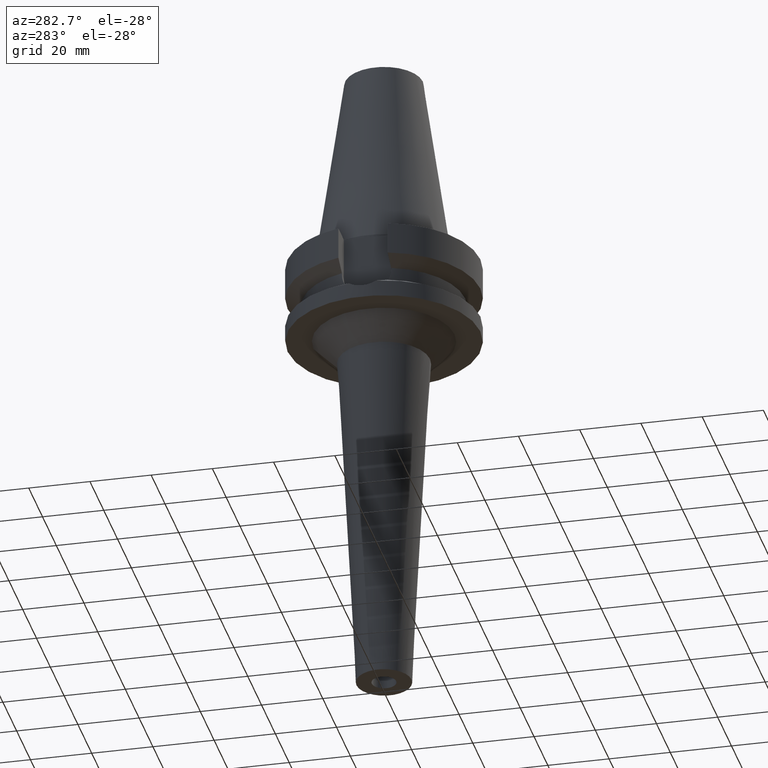
[diagram: clean part render]
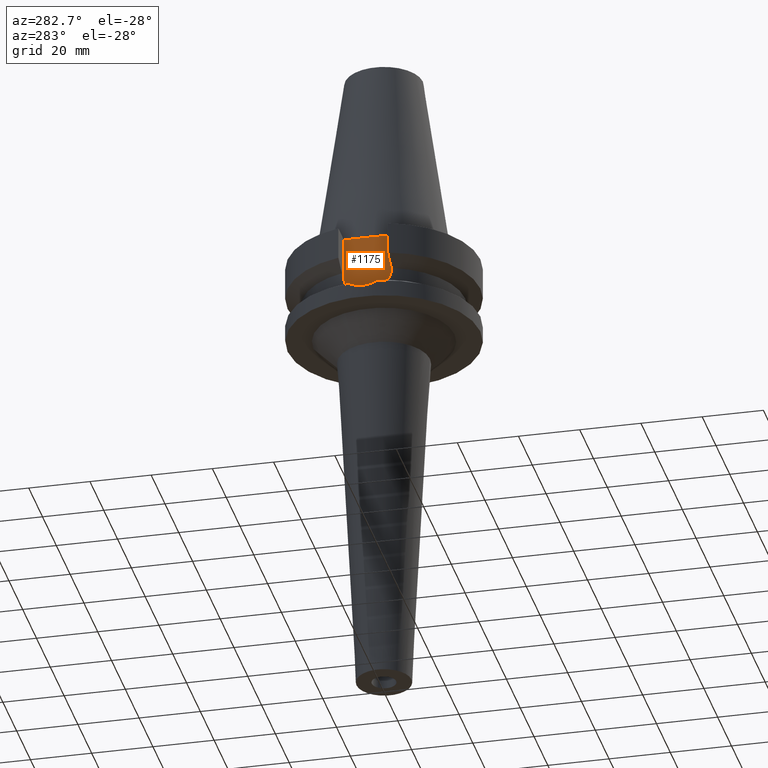
[diagram: same view with one face highlighted and labeled with its STEP entity id]
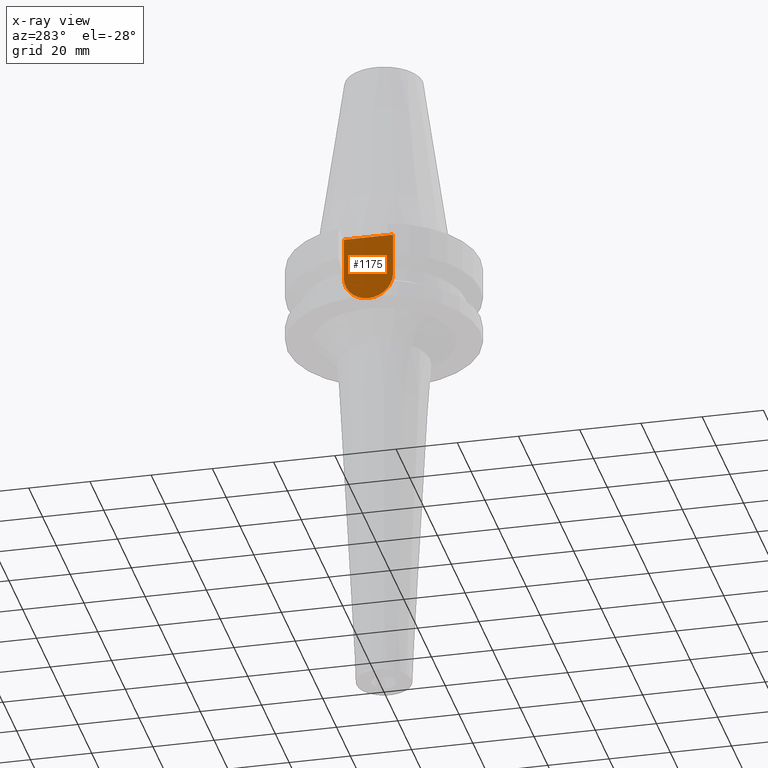
[diagram: x-ray of the same camera — body ghosted, the highlighted face saturated]
A machine part, auxiliary view. The second image highlights one B-rep face of the part: STEP entity #1175.
The next image is the same camera in x-ray: the body ghosted, the highlighted face saturated — about 0% of this face is hidden behind the body in this view.
In plain terms, the highlighted planar face has unit normal (-1, 0, 0).
Its self-contained STEP definition (entity closure, byte-faithful):
#94=DIRECTION('',(0.E0,1.E0,0.E0));
#95=VECTOR('',#94,1.61E1);
#96=CARTESIAN_POINT('',(-2.25E1,-8.05E0,-1.E0));
#97=LINE('',#96,#95);
#170=DIRECTION('',(0.E0,0.E0,-1.E0));
#171=VECTOR('',#170,1.395E1);
#172=CARTESIAN_POINT('',(-2.25E1,-8.05E0,-1.E0));
#173=LINE('',#172,#171);
#177=CARTESIAN_POINT('',(-2.25E1,1.807578675541E-14,-1.495E1));
#178=DIRECTION('',(1.E0,0.E0,0.E0));
#179=DIRECTION('',(0.E0,-1.E0,1.919789379228E-14));
#180=AXIS2_PLACEMENT_3D('',#177,#178,#179);
#185=CARTESIAN_POINT('',(-2.25E1,1.807578675541E-14,-1.495E1));
#186=DIRECTION('',(1.E0,0.E0,0.E0));
#187=DIRECTION('',(0.E0,0.E0,-1.E0));
#188=AXIS2_PLACEMENT_3D('',#185,#186,#187);
#193=DIRECTION('',(0.E0,0.E0,1.E0));
#194=VECTOR('',#193,1.395E1);
#195=CARTESIAN_POINT('',(-2.25E1,8.05E0,-1.495E1));
#196=LINE('',#195,#194);
#995=CARTESIAN_POINT('',(-2.25E1,8.05E0,-1.495E1));
#996=VERTEX_POINT('',#995);
#997=CARTESIAN_POINT('',(-2.25E1,1.856870709207E-14,-2.3E1));
#998=VERTEX_POINT('',#997);
#999=CARTESIAN_POINT('',(-2.25E1,-8.05E0,-1.495E1));
#1000=VERTEX_POINT('',#999);
#1015=CARTESIAN_POINT('',(-2.25E1,-8.05E0,-1.E0));
#1016=VERTEX_POINT('',#1015);
#1021=CARTESIAN_POINT('',(-2.25E1,8.05E0,-1.E0));
#1022=VERTEX_POINT('',#1021);
#1159=CARTESIAN_POINT('',(-2.25E1,2.173748068487E-14,0.E0));
#1160=DIRECTION('',(-1.E0,0.E0,0.E0));
#1161=DIRECTION('',(0.E0,0.E0,-1.E0));
#1162=AXIS2_PLACEMENT_3D('',#1159,#1160,#1161);
#1163=PLANE('',#1162);
#1164=ORIENTED_EDGE('',*,*,#1132,.F.);
#1166=ORIENTED_EDGE('',*,*,#1165,.T.);
#1168=ORIENTED_EDGE('',*,*,#1167,.T.);
#1170=ORIENTED_EDGE('',*,*,#1169,.T.);
#1172=ORIENTED_EDGE('',*,*,#1171,.T.);
#1173=EDGE_LOOP('',(#1164,#1166,#1168,#1170,#1172));
#1174=FACE_OUTER_BOUND('',#1173,.F.);
#181=CIRCLE('',#180,8.05E0);
#189=CIRCLE('',#188,8.05E0);
#1132=EDGE_CURVE('',#1016,#1022,#97,.T.);
#1165=EDGE_CURVE('',#1016,#1000,#173,.T.);
#1167=EDGE_CURVE('',#1000,#998,#181,.T.);
#1169=EDGE_CURVE('',#998,#996,#189,.T.);
#1171=EDGE_CURVE('',#996,#1022,#196,.T.);
#1175=ADVANCED_FACE('',(#1174),#1163,.T.);